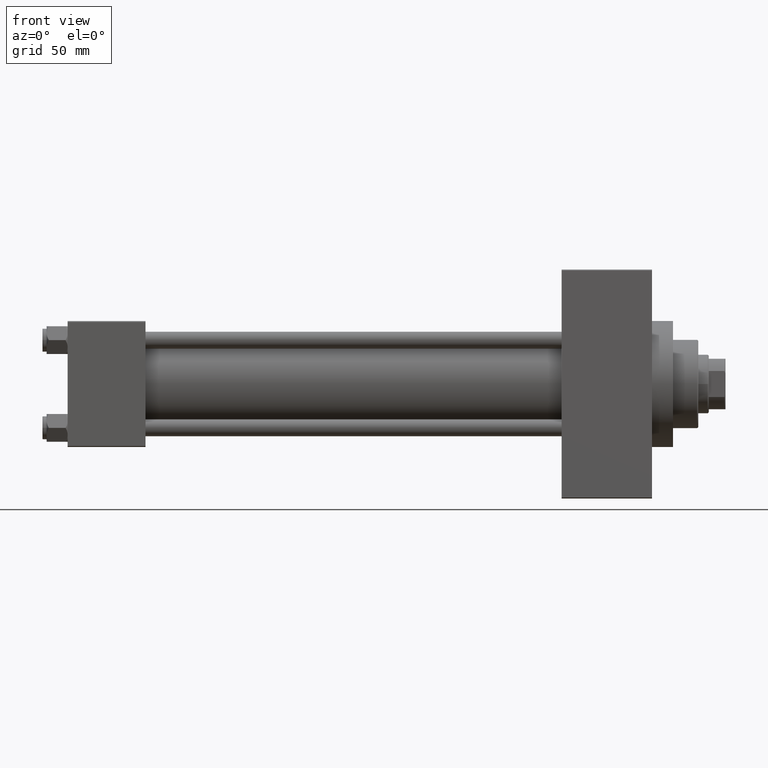
[diagram: clean part render]
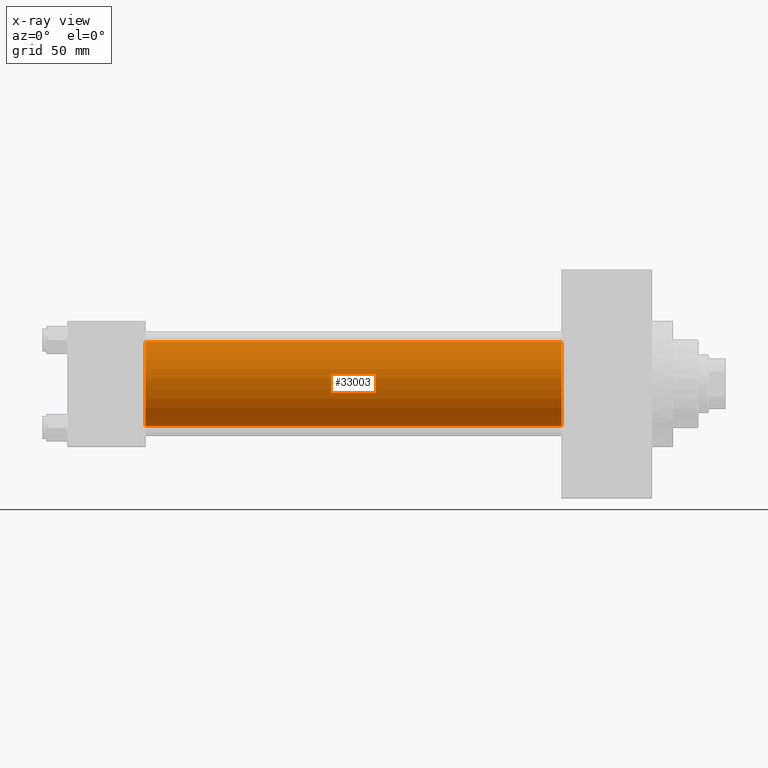
[diagram: x-ray — body ghosted, one internal face saturated and labeled with its STEP entity id]
A machine part, front view, then the same camera in x-ray: the body is ghosted and one INTERNAL B-rep face — a face not visible from any outside direction — is saturated and labeled: STEP entity #33003.
In plain terms, the highlighted cylindrical surface (partial cylindrical patch) has radius 20 mm, axis along (-1, -0, -0).
Its self-contained STEP definition (entity closure, byte-faithful):
#499 = CARTESIAN_POINT ( 'NONE',  ( 235.0000000000000284, -2.602085213965210642E-15, 20.00000000000000000 ) ) ;
#659 = EDGE_CURVE ( 'NONE', #47155, #34422, #45987, .T. ) ;
#2979 = ORIENTED_EDGE ( 'NONE', *, *, #42084, .F. ) ;
#3495 = LINE ( 'NONE', #40262, #24287 ) ;
#3581 = VECTOR ( 'NONE', #45043, 1000.000000000000000 ) ;
#3718 = DIRECTION ( 'NONE',  ( 0.000000000000000000, 0.000000000000000000, -1.000000000000000000 ) ) ;
#4597 = ORIENTED_EDGE ( 'NONE', *, *, #4948, .F. ) ;
#4948 = EDGE_CURVE ( 'NONE', #18482, #39098, #15296, .T. ) ;
#7087 = CARTESIAN_POINT ( 'NONE',  ( 235.0000000000000284, -2.602085213965210642E-15, 0.000000000000000000 ) ) ;
#8030 = LINE ( 'NONE', #33742, #3581 ) ;
#15296 = CIRCLE ( 'NONE', #29881, 20.00000000000000000 ) ;
#15361 = DIRECTION ( 'NONE',  ( 0.000000000000000000, 0.000000000000000000, -1.000000000000000000 ) ) ;
#17230 = ORIENTED_EDGE ( 'NONE', *, *, #659, .T. ) ;
#17863 = CARTESIAN_POINT ( 'NONE',  ( 37.00000000000000000, -2.602085213965210642E-15, 0.000000000000000000 ) ) ;
#18482 = VERTEX_POINT ( 'NONE', #35837 ) ;
#19517 = CARTESIAN_POINT ( 'NONE',  ( 37.00000000000000000, -1.527916156705042519E-16, -20.00000000000000000 ) ) ;
#20460 = CARTESIAN_POINT ( 'NONE',  ( 235.0000000000000284, -1.527916156705042519E-16, -20.00000000000000000 ) ) ;
#21766 = DIRECTION ( 'NONE',  ( -1.000000000000000000, -0.000000000000000000, -0.000000000000000000 ) ) ;
#22017 = DIRECTION ( 'NONE',  ( -1.000000000000000000, -0.000000000000000000, -0.000000000000000000 ) ) ;
#22224 = AXIS2_PLACEMENT_3D ( 'NONE', #36652, #29910, #3718 ) ;
#24287 = VECTOR ( 'NONE', #22017, 1000.000000000000000 ) ;
#25366 = FACE_OUTER_BOUND ( 'NONE', #41269, .T. ) ;
#29881 = AXIS2_PLACEMENT_3D ( 'NONE', #17863, #39727, #15361 ) ;
#29910 = DIRECTION ( 'NONE',  ( 1.000000000000000000, 0.000000000000000000, 0.000000000000000000 ) ) ;
#31063 = AXIS2_PLACEMENT_3D ( 'NONE', #7087, #21766, #35933 ) ;
#33003 = ADVANCED_FACE ( 'NONE', ( #25366 ), #40013, .F. ) ;
#33654 = ORIENTED_EDGE ( 'NONE', *, *, #37523, .T. ) ;
#33742 = CARTESIAN_POINT ( 'NONE',  ( 235.0000000000000284, -2.602085213965210642E-15, 20.00000000000000000 ) ) ;
#34422 = VERTEX_POINT ( 'NONE', #20460 ) ;
#35837 = CARTESIAN_POINT ( 'NONE',  ( 37.00000000000000000, -2.602085213965210642E-15, 20.00000000000000000 ) ) ;
#35933 = DIRECTION ( 'NONE',  ( 0.000000000000000000, 0.000000000000000000, 1.000000000000000000 ) ) ;
#36652 = CARTESIAN_POINT ( 'NONE',  ( 235.0000000000000284, -2.602085213965210642E-15, 0.000000000000000000 ) ) ;
#37523 = EDGE_CURVE ( 'NONE', #34422, #39098, #3495, .T. ) ;
#39098 = VERTEX_POINT ( 'NONE', #19517 ) ;
#39727 = DIRECTION ( 'NONE',  ( 1.000000000000000000, 0.000000000000000000, 0.000000000000000000 ) ) ;
#40013 = CYLINDRICAL_SURFACE ( 'NONE', #31063, 20.00000000000000000 ) ;
#40262 = CARTESIAN_POINT ( 'NONE',  ( 235.0000000000000284, -1.527916156705042519E-16, -20.00000000000000000 ) ) ;
#41269 = EDGE_LOOP ( 'NONE', ( #17230, #33654, #4597, #2979 ) ) ;
#42084 = EDGE_CURVE ( 'NONE', #47155, #18482, #8030, .T. ) ;
#45043 = DIRECTION ( 'NONE',  ( -1.000000000000000000, -0.000000000000000000, -0.000000000000000000 ) ) ;
#45987 = CIRCLE ( 'NONE', #22224, 20.00000000000000000 ) ;
#47155 = VERTEX_POINT ( 'NONE', #499 ) ;